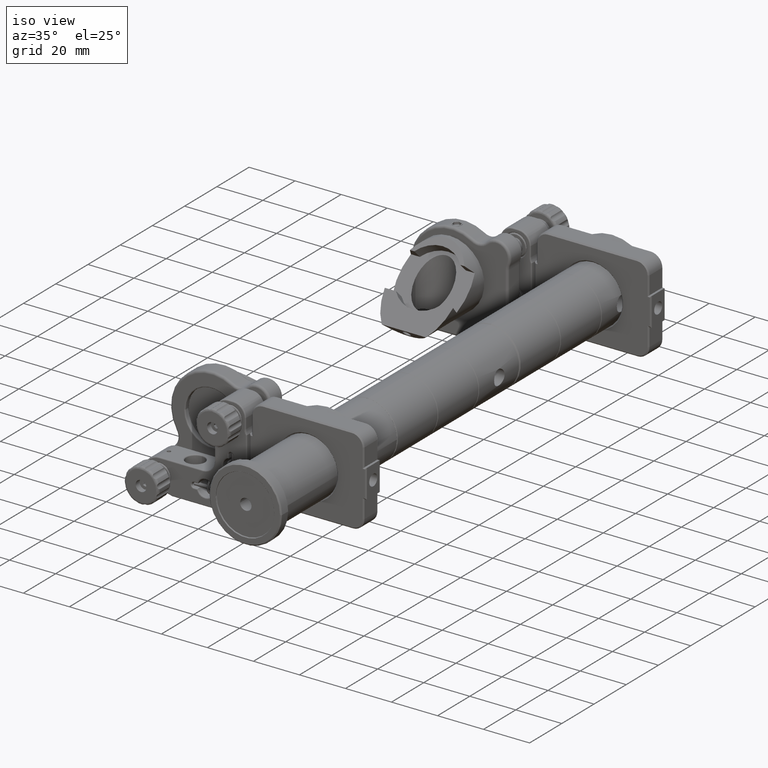
[diagram: clean part render]
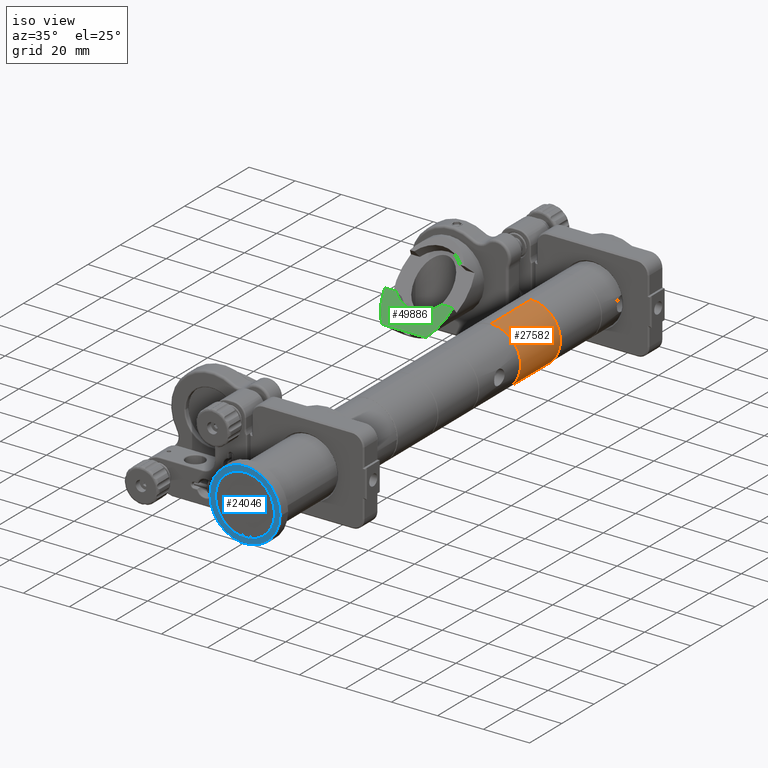
[diagram: same view with three faces highlighted in distinct colors, each labeled with its STEP entity id]
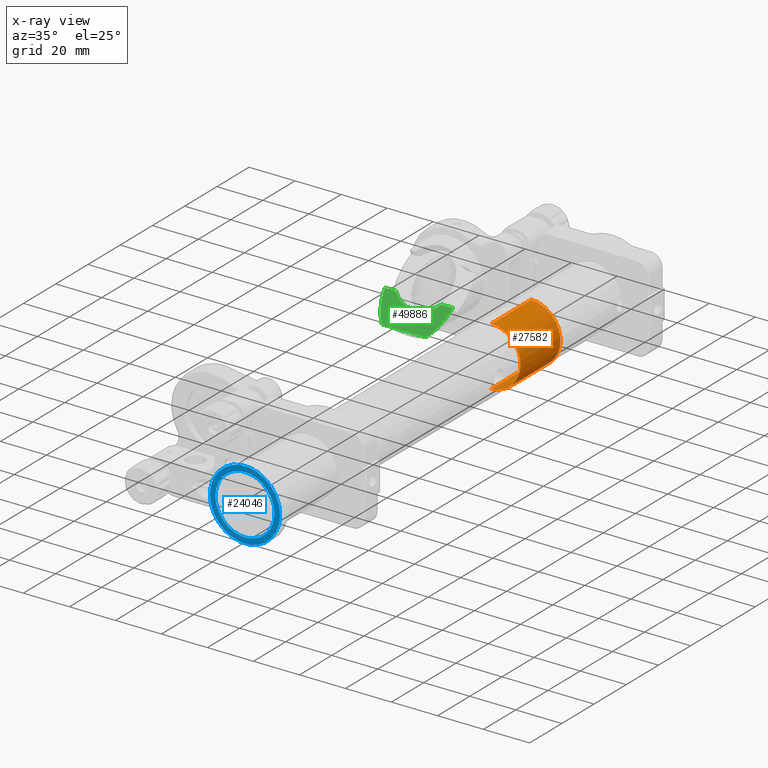
[diagram: x-ray of the same camera — body ghosted, the three highlighted faces saturated]
A machine part, iso view with three faces highlighted in distinct colors.
The next image is the same camera in x-ray (body ghosted, the three faces saturated) — at least one of them is partly hidden behind the body in this view.
Their STEP definitions:

[orange] entity #27582 — the highlighted cylindrical surface (edge-blend (fillet) strip) has radius 12.75 mm, axis along (-0, -1, -0).
#2328 = EDGE_CURVE ( 'NONE', #51777, #20135, #48186, .T. ) ;
#3991 = DIRECTION ( 'NONE',  ( 0.0000000000000000000, 0.0000000000000000000, -1.000000000000000000 ) ) ;
#4623 = EDGE_CURVE ( 'NONE', #20135, #37525, #50931, .T. ) ;
#4774 = AXIS2_PLACEMENT_3D ( 'NONE', #53509, #58543, #11980 ) ;
#5355 = FACE_OUTER_BOUND ( 'NONE', #19006, .T. ) ;
#7770 = EDGE_CURVE ( 'NONE', #37934, #51777, #55718, .T. ) ;
#8497 = DIRECTION ( 'NONE',  ( -0.0000000000000000000, 1.000000000000000000, -0.0000000000000000000 ) ) ;
#11980 = DIRECTION ( 'NONE',  ( 0.0000000000000000000, 0.0000000000000000000, -1.000000000000000000 ) ) ;
#19006 = EDGE_LOOP ( 'NONE', ( #40870, #47989, #43715, #22816 ) ) ;
#19454 = CARTESIAN_POINT ( 'NONE',  ( 0.0000000000000000000, -63.76289373922437400, -12.74999999999999800 ) ) ;
#20135 = VERTEX_POINT ( 'NONE', #48553 ) ;
#21825 = CARTESIAN_POINT ( 'NONE',  ( 1.561424668912875500E-015, -30.51470252475409200, 12.75000000000000200 ) ) ;
#22816 = ORIENTED_EDGE ( 'NONE', *, *, #2328, .F. ) ;
#24374 = CARTESIAN_POINT ( 'NONE',  ( 0.0000000000000000000, -55.21470252475409500, 12.75000000000000000 ) ) ;
#26651 = VECTOR ( 'NONE', #33280, 1000.000000000000000 ) ;
#27582 = ADVANCED_FACE ( 'NONE', ( #5355 ), #55559, .T. ) ;
#29513 = CARTESIAN_POINT ( 'NONE',  ( 0.0000000000000000000, -30.51470252475409200, -12.75000000000000200 ) ) ;
#32402 = AXIS2_PLACEMENT_3D ( 'NONE', #39339, #48543, #3991 ) ;
#33280 = DIRECTION ( 'NONE',  ( -0.0000000000000000000, -1.000000000000000000, -0.0000000000000000000 ) ) ;
#36745 = CARTESIAN_POINT ( 'NONE',  ( 1.561424668912874900E-015, -63.76289373922437400, 12.74999999999999800 ) ) ;
#37525 = VERTEX_POINT ( 'NONE', #24374 ) ;
#37934 = VERTEX_POINT ( 'NONE', #21825 ) ;
#38436 = LINE ( 'NONE', #36745, #49127 ) ;
#39339 = CARTESIAN_POINT ( 'NONE',  ( 0.0000000000000000000, -63.76289373922437400, 0.0000000000000000000 ) ) ;
#40870 = ORIENTED_EDGE ( 'NONE', *, *, #7770, .F. ) ;
#43715 = ORIENTED_EDGE ( 'NONE', *, *, #4623, .F. ) ;
#47989 = ORIENTED_EDGE ( 'NONE', *, *, #56975, .T. ) ;
#48186 = LINE ( 'NONE', #19454, #26651 ) ;
#48543 = DIRECTION ( 'NONE',  ( -0.0000000000000000000, -1.000000000000000000, -0.0000000000000000000 ) ) ;
#48553 = CARTESIAN_POINT ( 'NONE',  ( 1.561424668912875100E-015, -55.21470252475409500, -12.75000000000000000 ) ) ;
#49127 = VECTOR ( 'NONE', #55596, 1000.000000000000000 ) ;
#49830 = CARTESIAN_POINT ( 'NONE',  ( 0.0000000000000000000, -30.51470252475409200, 0.0000000000000000000 ) ) ;
#50931 = CIRCLE ( 'NONE', #4774, 12.75000000000000000 ) ;
#51777 = VERTEX_POINT ( 'NONE', #29513 ) ;
#53509 = CARTESIAN_POINT ( 'NONE',  ( 0.0000000000000000000, -55.21470252475409500, 0.0000000000000000000 ) ) ;
#54268 = DIRECTION ( 'NONE',  ( 0.0000000000000000000, 0.0000000000000000000, 1.000000000000000000 ) ) ;
#55559 = CYLINDRICAL_SURFACE ( 'NONE', #32402, 12.74999999999999800 ) ;
#55596 = DIRECTION ( 'NONE',  ( -0.0000000000000000000, -1.000000000000000000, -0.0000000000000000000 ) ) ;
#55718 = CIRCLE ( 'NONE', #57145, 12.75000000000000200 ) ;
#56975 = EDGE_CURVE ( 'NONE', #37934, #37525, #38436, .T. ) ;
#57145 = AXIS2_PLACEMENT_3D ( 'NONE', #49830, #8497, #54268 ) ;
#58543 = DIRECTION ( 'NONE',  ( -0.0000000000000000000, -1.000000000000000000, -0.0000000000000000000 ) ) ;

[blue] entity #24046 — the highlighted planar face has unit normal (0, 1, 0).
#755 = EDGE_LOOP ( 'NONE', ( #22470, #6983 ) ) ;
#1516 = DIRECTION ( 'NONE',  ( 1.000000000000000000, 0.0000000000000000000, 1.224646799147353200E-016 ) ) ;
#3015 = CARTESIAN_POINT ( 'NONE',  ( 12.84999999999999800, -208.1147025247540800, 3.147342273808697300E-015 ) ) ;
#3475 = AXIS2_PLACEMENT_3D ( 'NONE', #25966, #16775, #21385 ) ;
#5363 = AXIS2_PLACEMENT_3D ( 'NONE', #57027, #47204, #28947 ) ;
#5659 = VERTEX_POINT ( 'NONE', #20102 ) ;
#6502 = DIRECTION ( 'NONE',  ( 0.0000000000000000000, -1.000000000000000000, 0.0000000000000000000 ) ) ;
#6983 = ORIENTED_EDGE ( 'NONE', *, *, #40574, .T. ) ;
#8919 = DIRECTION ( 'NONE',  ( -1.000000000000000000, 0.0000000000000000000, -1.224646799147353200E-016 ) ) ;
#10151 = CIRCLE ( 'NONE', #14548, 15.25000000000000000 ) ;
#13217 = AXIS2_PLACEMENT_3D ( 'NONE', #36610, #27772, #8919 ) ;
#14429 = CIRCLE ( 'NONE', #20459, 15.25000000000000000 ) ;
#14548 = AXIS2_PLACEMENT_3D ( 'NONE', #56153, #33855, #24633 ) ;
#15167 = EDGE_LOOP ( 'NONE', ( #39123, #37529 ) ) ;
#16249 = EDGE_CURVE ( 'NONE', #54101, #45634, #14429, .T. ) ;
#16775 = DIRECTION ( 'NONE',  ( 0.0000000000000000000, 1.000000000000000000, 0.0000000000000000000 ) ) ;
#20102 = CARTESIAN_POINT ( 'NONE',  ( -12.84999999999999800, -208.1147025247540800, -1.573671136904348700E-015 ) ) ;
#20459 = AXIS2_PLACEMENT_3D ( 'NONE', #52087, #6502, #1516 ) ;
#21385 = DIRECTION ( 'NONE',  ( -1.000000000000000000, 0.0000000000000000000, -1.224646799147353200E-016 ) ) ;
#21541 = FACE_BOUND ( 'NONE', #15167, .T. ) ;
#22470 = ORIENTED_EDGE ( 'NONE', *, *, #16249, .T. ) ;
#24046 = ADVANCED_FACE ( 'NONE', ( #21541, #26438 ), #44260, .F. ) ;
#24633 = DIRECTION ( 'NONE',  ( 1.000000000000000000, 0.0000000000000000000, 1.224646799147353200E-016 ) ) ;
#24839 = CIRCLE ( 'NONE', #5363, 12.84999999999999800 ) ;
#25966 = CARTESIAN_POINT ( 'NONE',  ( 1.561424668912874900E-015, -208.1147025247540800, -12.75000000000000000 ) ) ;
#26438 = FACE_OUTER_BOUND ( 'NONE', #755, .T. ) ;
#27772 = DIRECTION ( 'NONE',  ( 0.0000000000000000000, 1.000000000000000000, 0.0000000000000000000 ) ) ;
#28947 = DIRECTION ( 'NONE',  ( -1.000000000000000000, 0.0000000000000000000, -1.224646799147353200E-016 ) ) ;
#33855 = DIRECTION ( 'NONE',  ( 0.0000000000000000000, -1.000000000000000000, 0.0000000000000000000 ) ) ;
#36610 = CARTESIAN_POINT ( 'NONE',  ( -9.629649721936179300E-032, -208.1147025247540800, 0.0000000000000000000 ) ) ;
#37529 = ORIENTED_EDGE ( 'NONE', *, *, #48978, .T. ) ;
#39123 = ORIENTED_EDGE ( 'NONE', *, *, #44810, .T. ) ;
#40574 = EDGE_CURVE ( 'NONE', #45634, #54101, #10151, .T. ) ;
#44114 = CIRCLE ( 'NONE', #13217, 12.84999999999999800 ) ;
#44206 = CARTESIAN_POINT ( 'NONE',  ( -15.25000000000000000, -208.1147025247540800, -1.898202538678397600E-015 ) ) ;
#44260 = PLANE ( 'NONE',  #3475 ) ;
#44810 = EDGE_CURVE ( 'NONE', #5659, #57473, #24839, .T. ) ;
#45634 = VERTEX_POINT ( 'NONE', #53541 ) ;
#47204 = DIRECTION ( 'NONE',  ( 0.0000000000000000000, 1.000000000000000000, 0.0000000000000000000 ) ) ;
#48978 = EDGE_CURVE ( 'NONE', #57473, #5659, #44114, .T. ) ;
#52087 = CARTESIAN_POINT ( 'NONE',  ( -9.629649721936179300E-032, -208.1147025247540800, 0.0000000000000000000 ) ) ;
#53541 = CARTESIAN_POINT ( 'NONE',  ( 15.25000000000000000, -208.1147025247540800, 3.796405077356795100E-015 ) ) ;
#54101 = VERTEX_POINT ( 'NONE', #44206 ) ;
#56153 = CARTESIAN_POINT ( 'NONE',  ( -9.629649721936179300E-032, -208.1147025247540800, 0.0000000000000000000 ) ) ;
#57027 = CARTESIAN_POINT ( 'NONE',  ( -9.629649721936179300E-032, -208.1147025247540800, 0.0000000000000000000 ) ) ;
#57473 = VERTEX_POINT ( 'NONE', #3015 ) ;

[green] entity #49886 — the highlighted planar face has unit normal (-0, -0.7071, 0.7071).
#375 = EDGE_CURVE ( 'NONE', #21162, #36180, #54189, .T. ) ;
#399 = CARTESIAN_POINT ( 'NONE',  ( -66.21993811834985900, -29.74115287428717700, -5.826450349533386600 ) ) ;
#3152 = LINE ( 'NONE', #14052, #11063 ) ;
#3761 =( BOUNDED_CURVE ( )  B_SPLINE_CURVE ( 3, ( #50767, #399, #55566, #33086 ),
 .UNSPECIFIED., .F., .F. ) 
 B_SPLINE_CURVE_WITH_KNOTS ( ( 4, 4 ),
 ( 1.712693381399056600, 2.444429519947574700 ),
 .UNSPECIFIED. ) 
 CURVE ( )  GEOMETRIC_REPRESENTATION_ITEM ( )  RATIONAL_B_SPLINE_CURVE ( ( 1.000000000000000000, 0.9558757016912032800, 0.9558757016912032800, 1.000000000000000000 ) ) 
 REPRESENTATION_ITEM ( '' )  );
#4810 = CARTESIAN_POINT ( 'NONE',  ( -37.58006188165019500, -29.74115287428722400, -5.826450349533425700 ) ) ;
#6063 = EDGE_CURVE ( 'NONE', #23213, #36180, #38628, .T. ) ;
#6435 = DIRECTION ( 'NONE',  ( 6.115552975552652800E-017, 0.7071067811865436900, 0.7071067811865513500 ) ) ;
#7243 =( BOUNDED_CURVE ( )  B_SPLINE_CURVE ( 3, ( #37504, #55367, #4810, #28271 ),
 .UNSPECIFIED., .F., .F. ) 
 B_SPLINE_CURVE_WITH_KNOTS ( ( 4, 4 ),
 ( 3.838755787232007100, 4.570491925780528300 ),
 .UNSPECIFIED. ) 
 CURVE ( )  GEOMETRIC_REPRESENTATION_ITEM ( )  RATIONAL_B_SPLINE_CURVE ( ( 1.000000000000000000, 0.9558757016912029500, 0.9558757016912029500, 1.000000000000000000 ) ) 
 REPRESENTATION_ITEM ( '' )  );
#7625 = DIRECTION ( 'NONE',  ( 1.000000000000000000, -8.648697959437741300E-017, 0.0000000000000000000 ) ) ;
#9338 = LINE ( 'NONE', #17105, #28695 ) ;
#9584 = DIRECTION ( 'NONE',  ( -1.626303258728256300E-015, 0.7071067811865438000, 0.7071067811865512400 ) ) ;
#11063 = VECTOR ( 'NONE', #28441, 1000.000000000000000 ) ;
#14052 = CARTESIAN_POINT ( 'NONE',  ( -132.4474433175877000, -35.41470252475389900, -11.50000000000017900 ) ) ;
#15458 = ORIENTED_EDGE ( 'NONE', *, *, #41830, .F. ) ;
#16789 = CARTESIAN_POINT ( 'NONE',  ( -61.89199679743759200, -26.03602286831343800, -2.121320343559610400 ) ) ;
#17105 = CARTESIAN_POINT ( 'NONE',  ( -132.4474433175877000, -26.03602286831343400, -2.121320343559613100 ) ) ;
#20331 = CARTESIAN_POINT ( 'NONE',  ( -132.4474433175877000, -26.03602286831343400, -2.121320343559613100 ) ) ;
#20884 = ORIENTED_EDGE ( 'NONE', *, *, #6063, .T. ) ;
#21162 = VERTEX_POINT ( 'NONE', #46488 ) ;
#22399 = EDGE_LOOP ( 'NONE', ( #15458, #20884, #57101, #27545, #32665, #48768 ) ) ;
#23213 = VERTEX_POINT ( 'NONE', #58430 ) ;
#23247 = CARTESIAN_POINT ( 'NONE',  ( -51.90000000000002000, -20.37916861882120400, 3.535533905932683600 ) ) ;
#27545 = ORIENTED_EDGE ( 'NONE', *, *, #31158, .T. ) ;
#27885 = EDGE_CURVE ( 'NONE', #30297, #33662, #3152, .T. ) ;
#28271 = CARTESIAN_POINT ( 'NONE',  ( -37.05075759508256500, -26.03602286831344200, -2.121320343559613100 ) ) ;
#28441 = DIRECTION ( 'NONE',  ( 1.000000000000000000, -8.648697959437741300E-017, 0.0000000000000000000 ) ) ;
#28695 = VECTOR ( 'NONE', #7625, 1000.000000000000000 ) ;
#29028 = AXIS2_PLACEMENT_3D ( 'NONE', #23247, #37081, #9584 ) ;
#30297 = VERTEX_POINT ( 'NONE', #50589 ) ;
#31158 = EDGE_CURVE ( 'NONE', #21162, #30297, #3761, .T. ) ;
#32518 = FACE_OUTER_BOUND ( 'NONE', #22399, .T. ) ;
#32665 = ORIENTED_EDGE ( 'NONE', *, *, #27885, .T. ) ;
#33086 = CARTESIAN_POINT ( 'NONE',  ( -61.53068014212899300, -35.41470252475390600, -11.50000000000017900 ) ) ;
#33662 = VERTEX_POINT ( 'NONE', #43036 ) ;
#33936 = DIRECTION ( 'NONE',  ( -6.115552975552716900E-017, -0.7071067811865513500, 0.7071067811865436900 ) ) ;
#34534 = PLANE ( 'NONE',  #40509 ) ;
#36180 = VERTEX_POINT ( 'NONE', #16789 ) ;
#37081 = DIRECTION ( 'NONE',  ( 6.115552975552715700E-017, 0.7071067811865512400, -0.7071067811865438000 ) ) ;
#37504 = CARTESIAN_POINT ( 'NONE',  ( -42.26931985787113900, -35.41470252475390600, -11.50000000000017900 ) ) ;
#38628 = CIRCLE ( 'NONE', #29028, 12.80000000000000200 ) ;
#40509 = AXIS2_PLACEMENT_3D ( 'NONE', #20331, #33936, #6435 ) ;
#41830 = EDGE_CURVE ( 'NONE', #23213, #55920, #9338, .T. ) ;
#43036 = CARTESIAN_POINT ( 'NONE',  ( -42.26931985787113900, -35.41470252475390600, -11.50000000000017900 ) ) ;
#46488 = CARTESIAN_POINT ( 'NONE',  ( -66.74924240491758100, -26.03602286831344200, -2.121320343559613100 ) ) ;
#47517 = DIRECTION ( 'NONE',  ( 1.000000000000000000, -8.648697959437741300E-017, 0.0000000000000000000 ) ) ;
#48768 = ORIENTED_EDGE ( 'NONE', *, *, #50211, .T. ) ;
#49886 = ADVANCED_FACE ( 'NONE', ( #32518 ), #34534, .T. ) ;
#50211 = EDGE_CURVE ( 'NONE', #33662, #55920, #7243, .T. ) ;
#50589 = CARTESIAN_POINT ( 'NONE',  ( -61.53068014212899300, -35.41470252475390600, -11.50000000000017900 ) ) ;
#50767 = CARTESIAN_POINT ( 'NONE',  ( -66.74924240491758100, -26.03602286831344200, -2.121320343559613100 ) ) ;
#51389 = CARTESIAN_POINT ( 'NONE',  ( -37.05075759508256500, -26.03602286831344200, -2.121320343559613100 ) ) ;
#52740 = CARTESIAN_POINT ( 'NONE',  ( -132.4474433175877000, -26.03602286831343400, -2.121320343559613100 ) ) ;
#54189 = LINE ( 'NONE', #52740, #56327 ) ;
#55367 = CARTESIAN_POINT ( 'NONE',  ( -39.39988087190717900, -33.01168956291282100, -9.096987038159067400 ) ) ;
#55566 = CARTESIAN_POINT ( 'NONE',  ( -64.40011912809289600, -33.01168956291277800, -9.096987038159017700 ) ) ;
#55920 = VERTEX_POINT ( 'NONE', #51389 ) ;
#56327 = VECTOR ( 'NONE', #47517, 1000.000000000000000 ) ;
#57101 = ORIENTED_EDGE ( 'NONE', *, *, #375, .F. ) ;
#58430 = CARTESIAN_POINT ( 'NONE',  ( -41.90800320256245500, -26.03602286831349800, -2.121320343559553100 ) ) ;